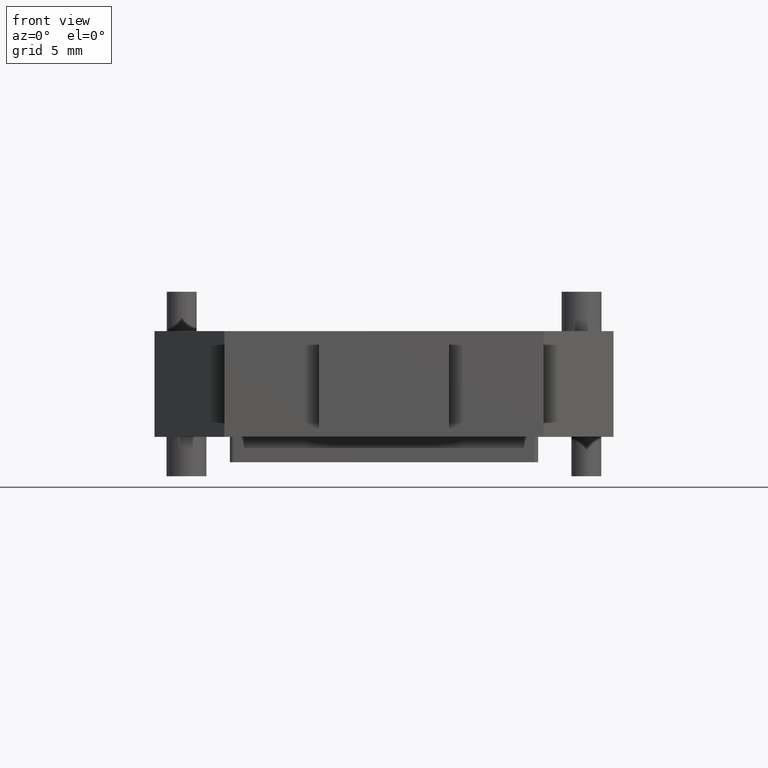
[diagram: clean part render]
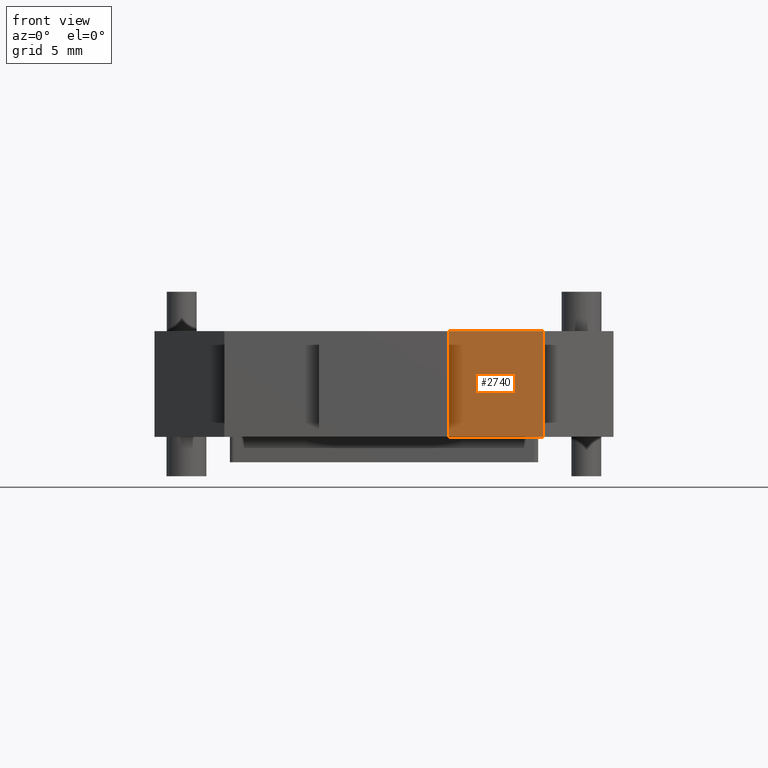
[diagram: same view with one face highlighted and labeled with its STEP entity id]
A machine part, front view. The second image highlights one B-rep face of the part: STEP entity #2740.
In plain terms, the highlighted planar face has unit normal (0, -1, 0).
Its self-contained STEP definition (entity closure, byte-faithful):
#30 = CARTESIAN_POINT ( 'NONE',  ( 299.2859378434519600, 432.5003766282130200, -56.83000000000001300 ) ) ;
#50 = CARTESIAN_POINT ( 'NONE',  ( 294.5359378434520200, 432.5003766282130200, -56.83000000000001300 ) ) ;
#53 = CARTESIAN_POINT ( 'NONE',  ( 299.2859378434519600, 432.5003766282130200, -51.53000000000000100 ) ) ;
#63 = CARTESIAN_POINT ( 'NONE',  ( 294.5359378434520200, 432.5003766282130200, -51.53000000000000100 ) ) ;
#878 = EDGE_LOOP ( 'NONE', ( #1210, #1259, #1231, #1216 ) ) ;
#1210 = ORIENTED_EDGE ( 'NONE', *, *, #2881, .F. ) ;
#1216 = ORIENTED_EDGE ( 'NONE', *, *, #2812, .T. ) ;
#1231 = ORIENTED_EDGE ( 'NONE', *, *, #2804, .T. ) ;
#1259 = ORIENTED_EDGE ( 'NONE', *, *, #2879, .F. ) ;
#1953 = VERTEX_POINT ( 'NONE', #50 ) ;
#1965 = VERTEX_POINT ( 'NONE', #53 ) ;
#1974 = VERTEX_POINT ( 'NONE', #63 ) ;
#1979 = VERTEX_POINT ( 'NONE', #30 ) ;
#2740 = ADVANCED_FACE ( 'NONE', ( #4599 ), #4583, .T. ) ;
#2804 = EDGE_CURVE ( 'NONE', #1974, #1953, #4894, .T. ) ;
#2812 = EDGE_CURVE ( 'NONE', #1953, #1979, #4904, .T. ) ;
#2879 = EDGE_CURVE ( 'NONE', #1974, #1965, #5097, .T. ) ;
#2881 = EDGE_CURVE ( 'NONE', #1965, #1979, #5102, .T. ) ;
#4138 = AXIS2_PLACEMENT_3D ( 'NONE', #4617, #4580, #4585 ) ;
#4197 = VECTOR ( 'NONE', #4930, 1000.000000000000000 ) ;
#4216 = VECTOR ( 'NONE', #4912, 1000.000000000000000 ) ;
#4253 = VECTOR ( 'NONE', #5130, 1000.000000000000000 ) ;
#4281 = VECTOR ( 'NONE', #5126, 1000.000000000000000 ) ;
#4580 = DIRECTION ( 'NONE',  ( 0.0000000000000000000, -1.000000000000000000, 0.0000000000000000000 ) ) ;
#4583 = PLANE ( 'NONE',  #4138 ) ;
#4585 = DIRECTION ( 'NONE',  ( 0.0000000000000000000, -0.0000000000000000000, -1.000000000000000000 ) ) ;
#4599 = FACE_OUTER_BOUND ( 'NONE', #878, .T. ) ;
#4617 = CARTESIAN_POINT ( 'NONE',  ( 299.2859378434519600, 432.5003766282130200, -34.64785193383039500 ) ) ;
#4894 = LINE ( 'NONE', #4901, #4216 ) ;
#4901 = CARTESIAN_POINT ( 'NONE',  ( 294.5359378434520200, 432.5003766282130200, -34.64785193383039500 ) ) ;
#4904 = LINE ( 'NONE', #4923, #4197 ) ;
#4912 = DIRECTION ( 'NONE',  ( 0.0000000000000000000, -0.0000000000000000000, -1.000000000000000000 ) ) ;
#4923 = CARTESIAN_POINT ( 'NONE',  ( 299.2859378434519600, 432.5003766282130200, -56.83000000000000500 ) ) ;
#4930 = DIRECTION ( 'NONE',  ( 1.000000000000000000, 0.0000000000000000000, 0.0000000000000000000 ) ) ;
#5097 = LINE ( 'NONE', #5101, #4253 ) ;
#5101 = CARTESIAN_POINT ( 'NONE',  ( 301.2859378434515100, 432.5003766282130200, -51.53000000000000100 ) ) ;
#5102 = LINE ( 'NONE', #5127, #4281 ) ;
#5126 = DIRECTION ( 'NONE',  ( 0.0000000000000000000, 0.0000000000000000000, -1.000000000000000000 ) ) ;
#5127 = CARTESIAN_POINT ( 'NONE',  ( 299.2859378434519600, 432.5003766282130200, -34.64785193383039500 ) ) ;
#5130 = DIRECTION ( 'NONE',  ( 1.000000000000000000, 0.0000000000000000000, -0.0000000000000000000 ) ) ;